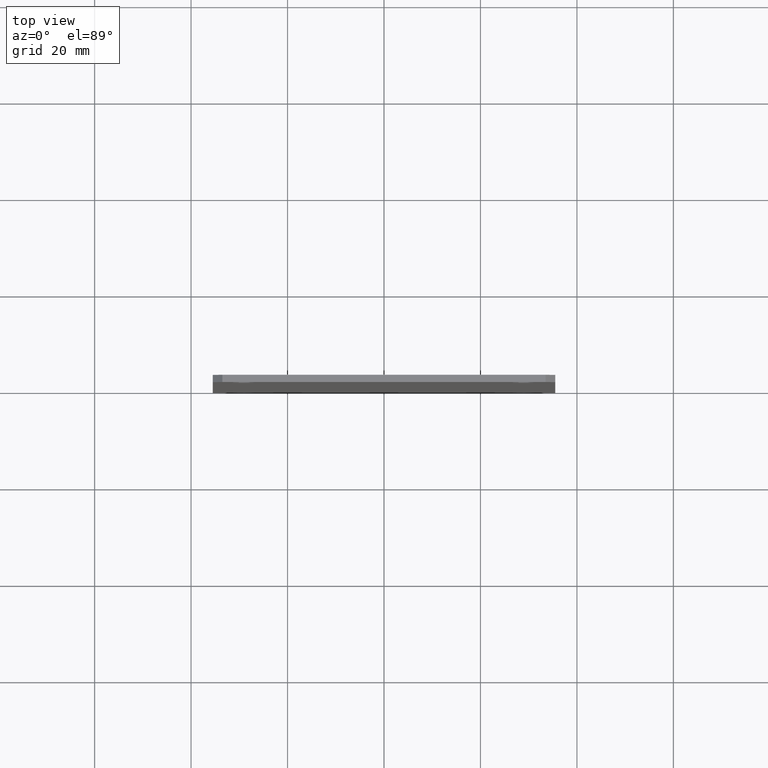
[diagram: clean part render]
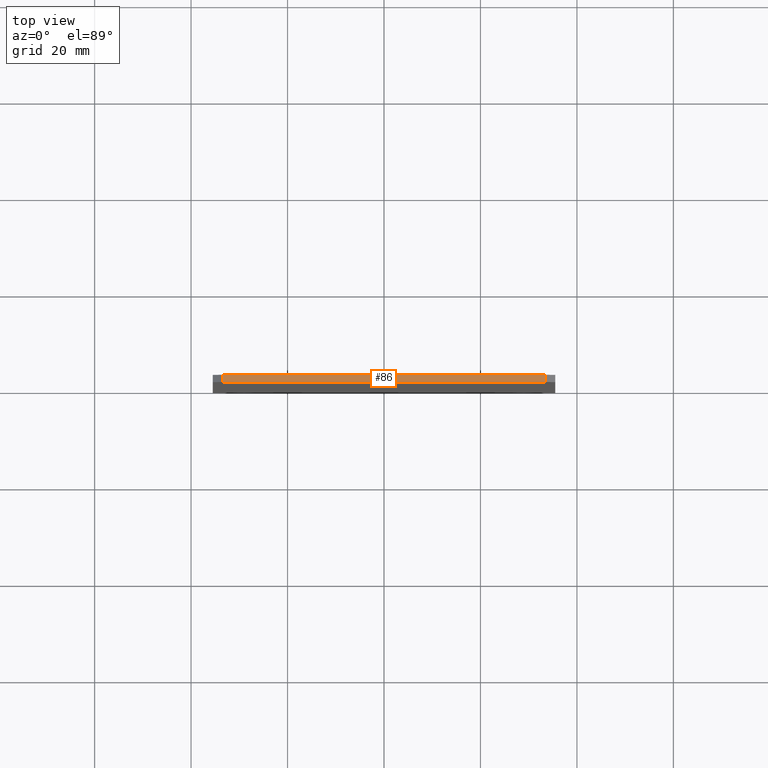
[diagram: same view with one face highlighted and labeled with its STEP entity id]
A machine part, top view. The second image highlights one B-rep face of the part: STEP entity #86.
In plain terms, the highlighted planar face has unit normal (0, 0, -1).
Its self-contained STEP definition (entity closure, byte-faithful):
#44 = VERTEX_POINT ( 'NONE', #318 ) ;
#46 = EDGE_CURVE ( 'NONE', #47, #44, #317, .T. ) ;
#47 = VERTEX_POINT ( 'NONE', #313 ) ;
#83 = EDGE_CURVE ( 'NONE', #119, #47, #432, .T. ) ;
#86 = ADVANCED_FACE ( 'NONE', ( #405 ), #433, .F. ) ;
#87 = EDGE_LOOP ( 'NONE', ( #88, #89, #91, #92 ) ) ;
#88 = ORIENTED_EDGE ( 'NONE', *, *, #46, .T. ) ;
#89 = ORIENTED_EDGE ( 'NONE', *, *, #90, .F. ) ;
#90 = EDGE_CURVE ( 'NONE', #122, #44, #421, .T. ) ;
#91 = ORIENTED_EDGE ( 'NONE', *, *, #121, .F. ) ;
#92 = ORIENTED_EDGE ( 'NONE', *, *, #83, .T. ) ;
#119 = VERTEX_POINT ( 'NONE', #339 ) ;
#121 = EDGE_CURVE ( 'NONE', #119, #122, #393, .T. ) ;
#122 = VERTEX_POINT ( 'NONE', #389 ) ;
#313 = CARTESIAN_POINT ( 'NONE',  ( -33.49999999999999300, 0.0000000000000000000, 67.00000000000000000 ) ) ;
#314 = DIRECTION ( 'NONE',  ( 1.000000000000000000, 0.0000000000000000000, 0.0000000000000000000 ) ) ;
#315 = VECTOR ( 'NONE', #314, 1000.000000000000000 ) ;
#316 = CARTESIAN_POINT ( 'NONE',  ( -33.49999999999999300, 0.0000000000000000000, 67.00000000000000000 ) ) ;
#317 = LINE ( 'NONE', #316, #315 ) ;
#318 = CARTESIAN_POINT ( 'NONE',  ( 33.49999999999999300, 0.0000000000000000000, 67.00000000000000000 ) ) ;
#339 = CARTESIAN_POINT ( 'NONE',  ( -33.49999999999999300, 1.500000000000000000, 67.00000000000000000 ) ) ;
#349 = DIRECTION ( 'NONE',  ( -1.000000000000000000, 0.0000000000000000000, -0.0000000000000000000 ) ) ;
#350 = DIRECTION ( 'NONE',  ( 0.0000000000000000000, 0.0000000000000000000, -1.000000000000000000 ) ) ;
#389 = CARTESIAN_POINT ( 'NONE',  ( 33.49999999999999300, 1.500000000000000000, 67.00000000000000000 ) ) ;
#390 = DIRECTION ( 'NONE',  ( 1.000000000000000000, 0.0000000000000000000, 0.0000000000000000000 ) ) ;
#391 = VECTOR ( 'NONE', #390, 1000.000000000000000 ) ;
#392 = CARTESIAN_POINT ( 'NONE',  ( -33.49999999999999300, 1.500000000000000000, 67.00000000000000000 ) ) ;
#393 = LINE ( 'NONE', #392, #391 ) ;
#397 = CARTESIAN_POINT ( 'NONE',  ( -33.49999999999999300, 1.500000000000000000, 67.00000000000000000 ) ) ;
#398 = AXIS2_PLACEMENT_3D ( 'NONE', #397, #350, #349 ) ;
#405 = FACE_OUTER_BOUND ( 'NONE', #87, .T. ) ;
#406 = DIRECTION ( 'NONE',  ( -0.0000000000000000000, -1.000000000000000000, -0.0000000000000000000 ) ) ;
#407 = VECTOR ( 'NONE', #406, 1000.000000000000000 ) ;
#408 = CARTESIAN_POINT ( 'NONE',  ( -33.49999999999999300, 1.500000000000000000, 67.00000000000000000 ) ) ;
#418 = DIRECTION ( 'NONE',  ( -0.0000000000000000000, -1.000000000000000000, -0.0000000000000000000 ) ) ;
#419 = VECTOR ( 'NONE', #418, 1000.000000000000000 ) ;
#420 = CARTESIAN_POINT ( 'NONE',  ( 33.49999999999999300, 1.500000000000000000, 67.00000000000000000 ) ) ;
#421 = LINE ( 'NONE', #420, #419 ) ;
#432 = LINE ( 'NONE', #408, #407 ) ;
#433 = PLANE ( 'NONE',  #398 ) ;